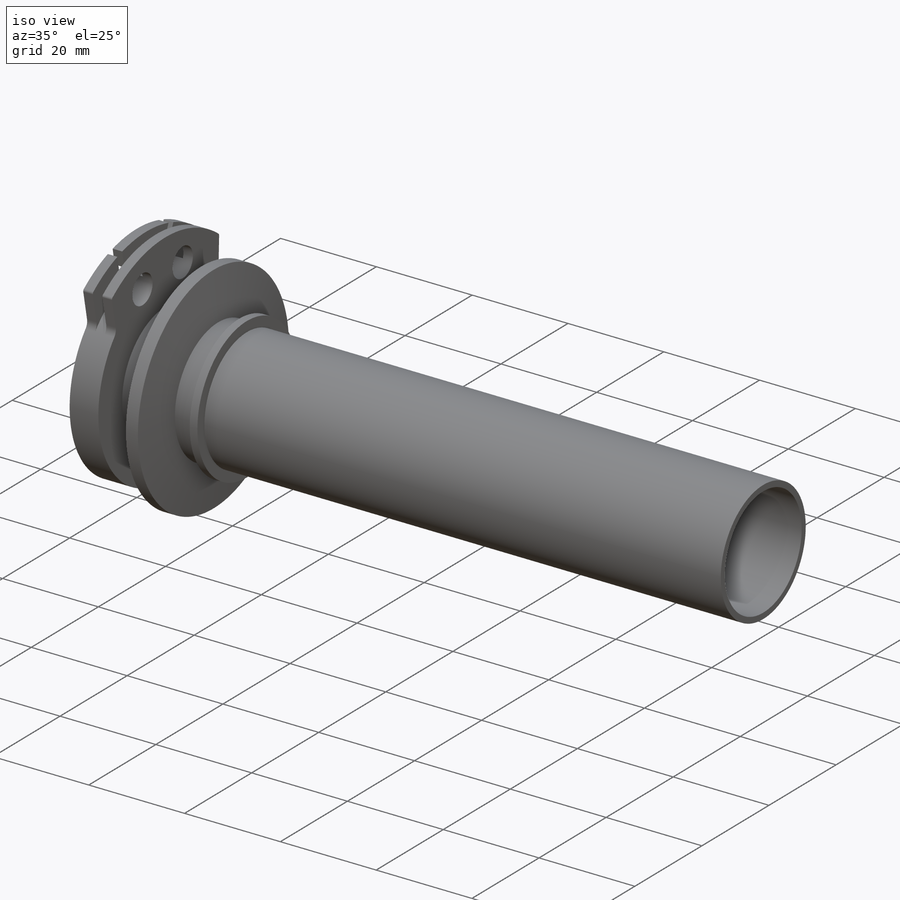
[diagram: iso view]
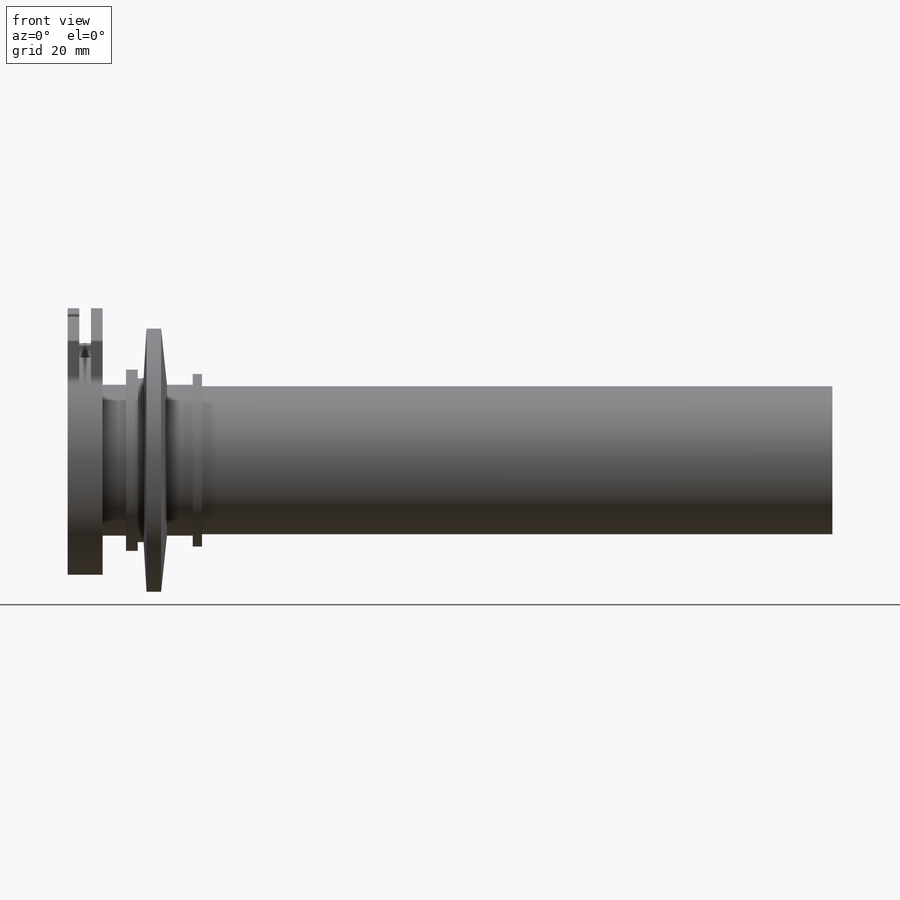
[diagram: front view]
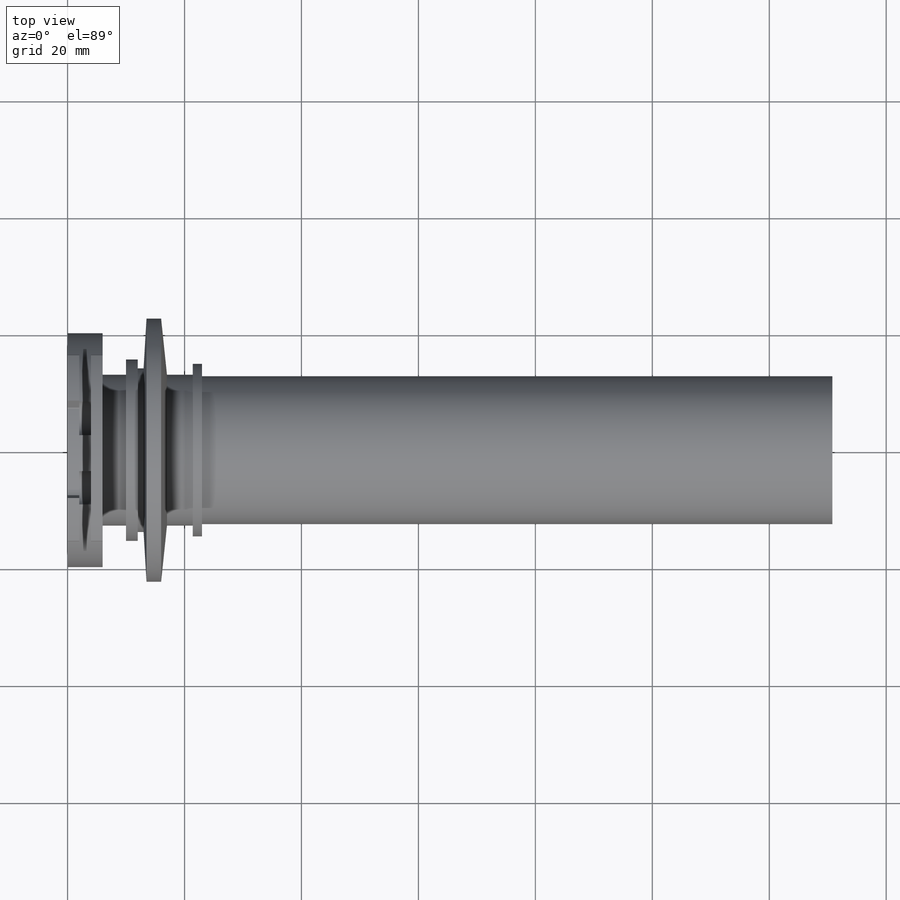
[diagram: top view]
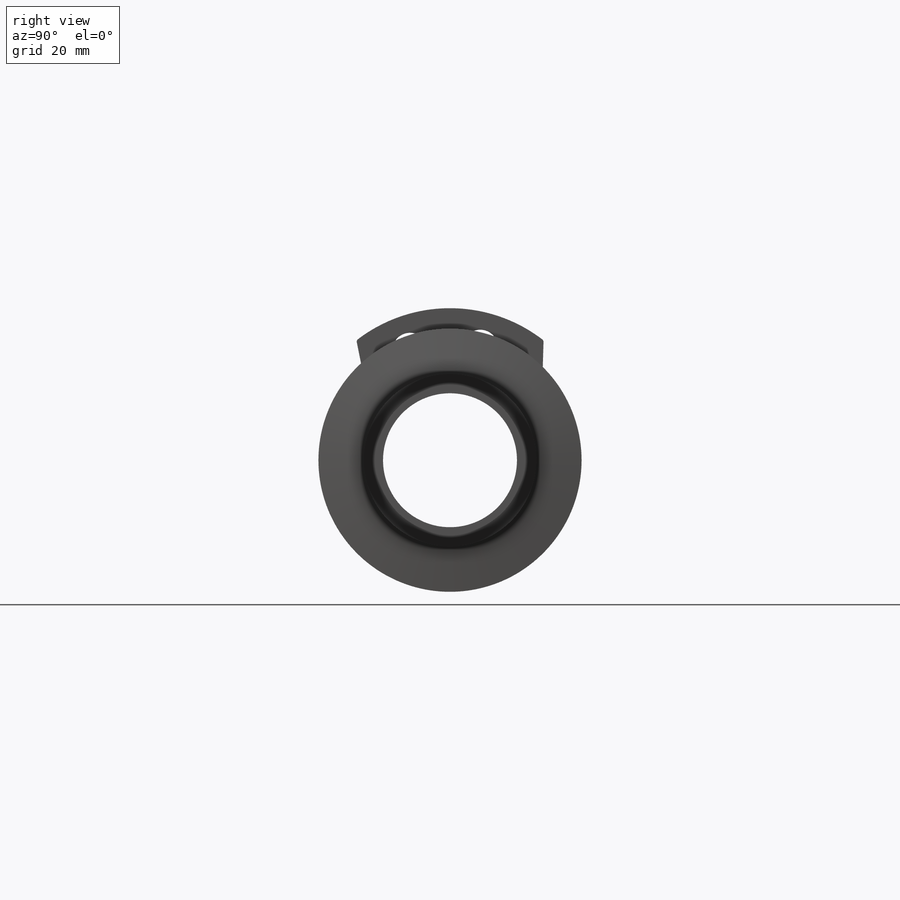
[diagram: right view]
SOLIDWORKS PART (.sldprt)
format: sldprt  version: not decoded by parser v0  size: 1,163,264 bytes
history: native  units: mm
features: sketch x5, cut_extrude x3, fillet x2, material x1, revolve x1, cut_revolve x1 (+11 scaffold rows collapsed)
feature tree (24):
  scaffold x11  (default folders/planes/origin — collapsed)
  material  "ABS"
  sketch  "Sketch1"  dims[c1.D1=22.9mm c1.D2=2.5mm c1.D3=130.8mm c1.D4=52.0mm c1.D5=2.0mm c1.D6=2.0mm c1.D7=45.0mm c1.D8=10.0mm c1.D9=34.0mm c2.D2=25.3mm c2.D10=2.0mm c2.D11=25.8mm c2.D12=9.6mm c2.D7=4.0mm c2.D8=2.0mm c3.D12=31.0mm c3.D13=1.0mm c3.D14=13.5mm c3.D15=3.5mm c3.D16=45.0mm c4.D15=16.0mm c4.D17=1.5mm c4.D18=16.0mm c5.D15=16.0mm c5.D18=17.0mm c5.D19=23.0mm c5.D20=1.6mm c5.D21=29.5mm c5.D5=6.0mm]
  revolve  "Revolve1"  Angle=360deg
  sketch  "Sketch5"  dims[D1=2.0mm D2=2.0mm D3=34.0mm]
  cut_revolve  "Cut-Revolve1"  Angle=360deg
  sketch  "Sketch2"  dims[c1.D4=34.0mm c1.D6=6.0mm c2.D4=20.0mm c2.D1=20.0mm c2.D2=31.75mm c3.D2=30.0deg c3.D3=~23.569948mm c4.D3=45.0deg c4.D5=10.0mm c4.D7=10.8mm c4.D8=12.0mm c4.D2=30.0mm c5.D3=32.0mm c5.D7=9.0mm c5.D8=32.0mm c5.D4=17.0mm c6.D4=15.0deg c6.D8=~16.053494mm c7.D8=20.0deg c7.D1=3.0mm c7.D2=~15.321936mm c8.D2=52.0deg c8.D3=31.75mm c9.D3=47.0deg c9.D7=32.0mm c9.D2=~8.180672mm c10.D2=~88.321075deg c10.D3=~6.853934mm c11.D3=~78.672874deg c11.D1=3.0mm]
  cut_extrude  "Cut-Extrude1"  [1 undecoded]
  fillet  "Fillet1"  Radius=2mm
  sketch  "Sketch3"  dims[c1.D5=17.0mm c1.D1=17.0mm c2.D1=90.0deg c2.D2=~13.459397mm c3.D2=160.0deg c3.D3=17.0mm c4.D3=160.0deg c5.D3=17.0mm c6.D3=160.0deg c6.D4=17.0mm c7.D4=3.5deg]
  cut_extrude  "Cut-Extrude2"  [1 undecoded]
  fillet  "Fillet2"  Radius=0.5mm
  sketch  "Sketch4"  dims[c1.D1=1.5mm c1.D2=1.5mm c1.D3=~9.303666mm c2.D3=~34.82491deg c2.D4=~10.254844mm c3.D4=~24.872511deg c3.D3=~15.116301mm c4.D3=21.0deg c4.D4=10.0deg c4.D5=~16.83007mm]
  cut_extrude  "Cut-Extrude3"  [1 undecoded]
decode coverage: 9 of 12 modeling features carry decoded parameters
note: ~ marks probable driven/reference dimensions
note: 3 parameter values undecoded
summary: no parameter record found for 3 features
note: suppression state not decoded; provenance and decode notes live in map.json
